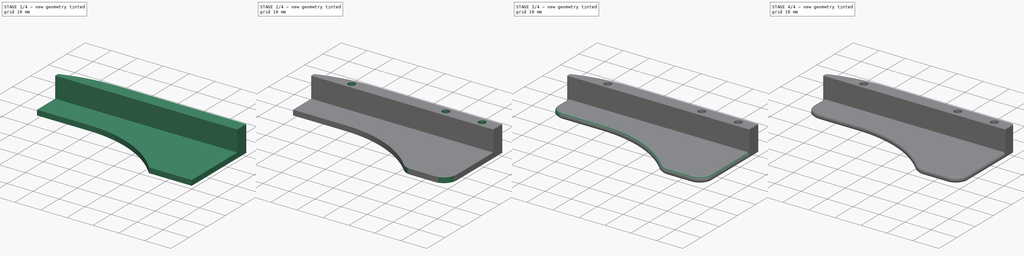
[diagram: build sequence overview — one tinted view per stage of 4, left to right]
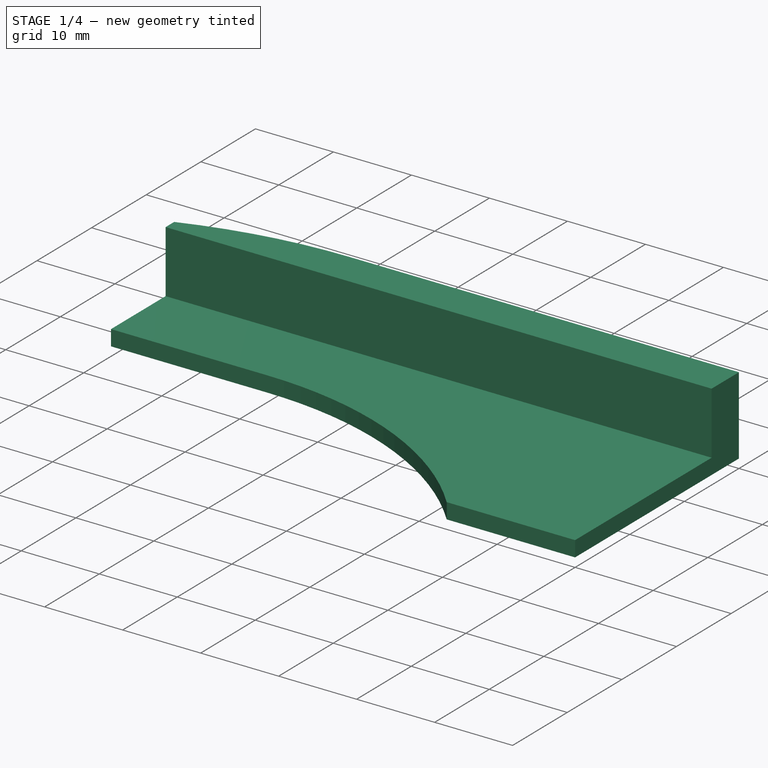
[diagram: stage 1 of 4 — iso view after this stage's code; geometry added in this stage tinted green]
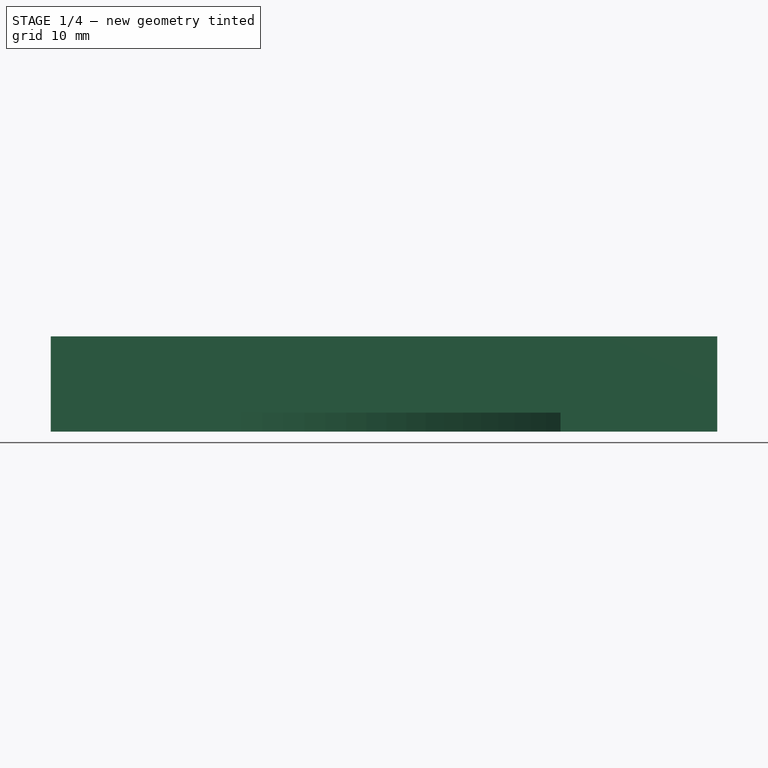
[diagram: stage 1 of 4 — front view after this stage's code; geometry added in this stage tinted green]
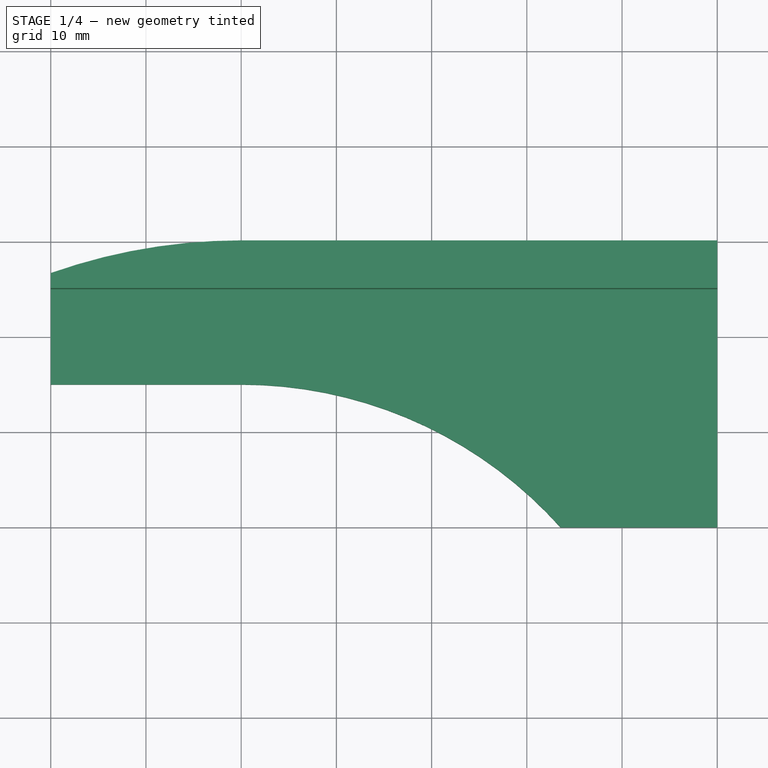
[diagram: stage 1 of 4 — top view after this stage's code; geometry added in this stage tinted green]
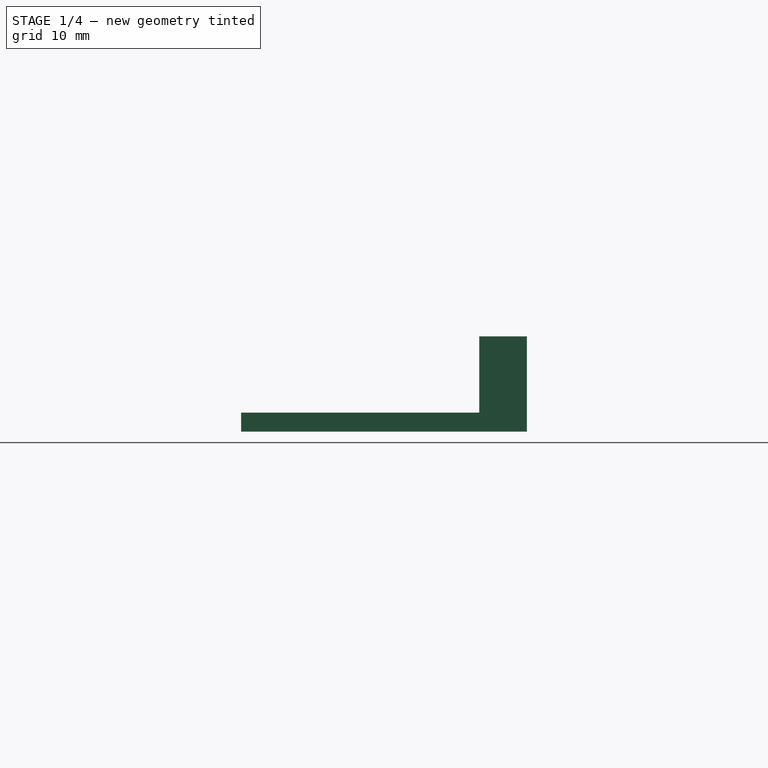
[diagram: stage 1 of 4 — right view after this stage's code; geometry added in this stage tinted green]
FCSTD DOCUMENT  (FreeCAD 0.16R)
Label: out4
License: All rights reserved
LicenseURL: http://en.wikipedia.org/wiki/All_rights_reserved
objects: PartDesign::Fillet×6, Sketcher::SketchObject×3, PartDesign::Pad×2, PartDesign::Pocket×1, PartDesign::Chamfer×1
note: 16 computed .brp shape members not serialized (recipe doc carries the construction recipe); baked Part::Feature solids carry a one-line shape summary decoded from their .brp

FEATURE [Sketcher::SketchObject] Sketch001
  sketch-geometry (11):
    g0: LineSegment [constr] StartX=0 StartY=0 StartZ=0 EndX=43.8558 EndY=143.446 EndZ=0
    g1: Circle [constr] CenterX=0 CenterY=0 CenterZ=0 NormalX=0 NormalY=0 NormalZ=1 Radius=55
    g2: LineSegment [constr] StartX=0 StartY=55 StartZ=0 EndX=150 EndY=55 EndZ=0
    g3: LineSegment StartX=33.541 StartY=30 StartZ=0 EndX=50 EndY=30 EndZ=0
    g4: Circle [constr] CenterX=0 CenterY=0 CenterZ=0 NormalX=0 NormalY=0 NormalZ=1 Radius=35.4
    g5: ArcOfCircle CenterX=0 CenterY=0 CenterZ=0 NormalX=0 NormalY=0 NormalZ=1 Radius=60 StartAngle=1.5708 EndAngle=1.91063
    g6: ArcOfCircle CenterX=0 CenterY=0 CenterZ=0 NormalX=0 NormalY=0 NormalZ=1 Radius=45 StartAngle=0.729728 EndAngle=1.57079
    g7: LineSegment StartX=50 StartY=30 StartZ=0 EndX=50 EndY=60 EndZ=0
    g8: LineSegment StartX=0 StartY=60 StartZ=0 EndX=50 EndY=60 EndZ=0
    g9: LineSegment StartX=-20 StartY=45 StartZ=0 EndX=-20 EndY=56.5685 EndZ=0
    g10: LineSegment StartX=-20 StartY=45 StartZ=0 EndX=8.59442e-05 EndY=45 EndZ=0
  constraints (35):
    c: Coincident(g0,g-1)
    c: Distance(g0) = 150
    c: Angle(g0) = 1.27409
    c: Coincident(g1,g-1)
    c: Radius(g1) = 55
    c: Horizontal(g2)
    c: Horizontal(g3)
    c: Radius(g4) = 35.4
    c: Coincident(g4,g-1)
    c: Coincident(g5,g-1)
    c: Radius(g5) = 60
    c: Coincident(g6,g-1)
    c: Radius(g6) = 45
    c: Vertical(g7)
    c: PointOnObject(g8,g5)
    c: Coincident(g8,g7)
    c: Horizontal(g8)
    c: Coincident(g7,g3)
    c: Coincident(g6,g3)
    c: Coincident(g8,g5)
    c: Coincident(g9,g5)
    c: Vertical(g9)
    c: DistanceX(g5,g-1) = 20
    c: DistanceX(g7) = 50
    c: Distance(g7) = 30
    c: PointOnObject(g5,g-2)
    c: Distance(g2) = 150
    c: PointOnObject(g2,g1)
    c: PointOnObject(g2,g-2)
    c: PointOnObject(g10,g6)
    c: Horizontal(g10)
    c: Tangent(g10,g6)
    c: PointOnObject(g10,g9)
    c: Coincident(g9,g10)
    c: Coincident(g6,g10)
FEATURE [PartDesign::Pad] Pad
  Length = 2
  Length2 = 100
  Sketch = -> Sketch001
  Type = 0
FEATURE [Sketcher::SketchObject] Sketch002
  Placement = pos=(0,0,2) rot=(0,0,1;0rad)
  Support = -> Pad [Face9]
  sketch-geometry (9):
    g0: LineSegment [constr] StartX=0 StartY=0 StartZ=0 EndX=43.8558 EndY=143.446 EndZ=0
    g1: Circle [constr] CenterX=0 CenterY=0 CenterZ=0 NormalX=0 NormalY=0 NormalZ=1 Radius=55
    g2: LineSegment StartX=29.7023 StartY=55 StartZ=0 EndX=50 EndY=55 EndZ=0
    g3: Circle [constr] CenterX=0 CenterY=0 CenterZ=0 NormalX=0 NormalY=0 NormalZ=1 Radius=35.4
    g4: ArcOfCircle CenterX=0 CenterY=0 CenterZ=0 NormalX=0 NormalY=0 NormalZ=1 Radius=60 StartAngle=1.5708 EndAngle=1.91063
    g5: LineSegment StartX=50 StartY=55 StartZ=0 EndX=50 EndY=60 EndZ=0
    g6: LineSegment StartX=-6e-12 StartY=60 StartZ=0 EndX=50 EndY=60 EndZ=0
    g7: LineSegment StartX=-20 StartY=55 StartZ=0 EndX=-20 EndY=56.5685 EndZ=0
    g8: LineSegment StartX=-20 StartY=55 StartZ=0 EndX=50 EndY=55 EndZ=0
  constraints (25):
    c: Coincident(g0,g-1)
    c: Distance(g0) = 150
    c: Angle(g0) = 1.27409
    c: Coincident(g1,g-1)
    c: Radius(g1) = 55
    c: Horizontal(g2)
    c: Radius(g3) = 35.4
    c: Coincident(g3,g-1)
    c: Coincident(g4,g-1)
    c: Radius(g4) = 60
    c: Vertical(g5)
    c: Coincident(g6,g5)
    c: Horizontal(g6)
    c: Coincident(g5,g2)
    c: Coincident(g6,g4)
    c: Coincident(g7,g4)
    c: Vertical(g7)
    c: DistanceX(g4,g-1) = 20
    c: DistanceX(g5) = 50
    c: Distance(g5) = 5
    c: PointOnObject(g4,g-2)
    c: Coincident(g8,g7)
    c: Coincident(g8,g2)
    c: Horizontal(g8)
    c: Distance(g2) = 20.2977
FEATURE [PartDesign::Pad] Pad001
  Length = 8
  Length2 = 100
  Sketch = -> Sketch002
  Type = 0
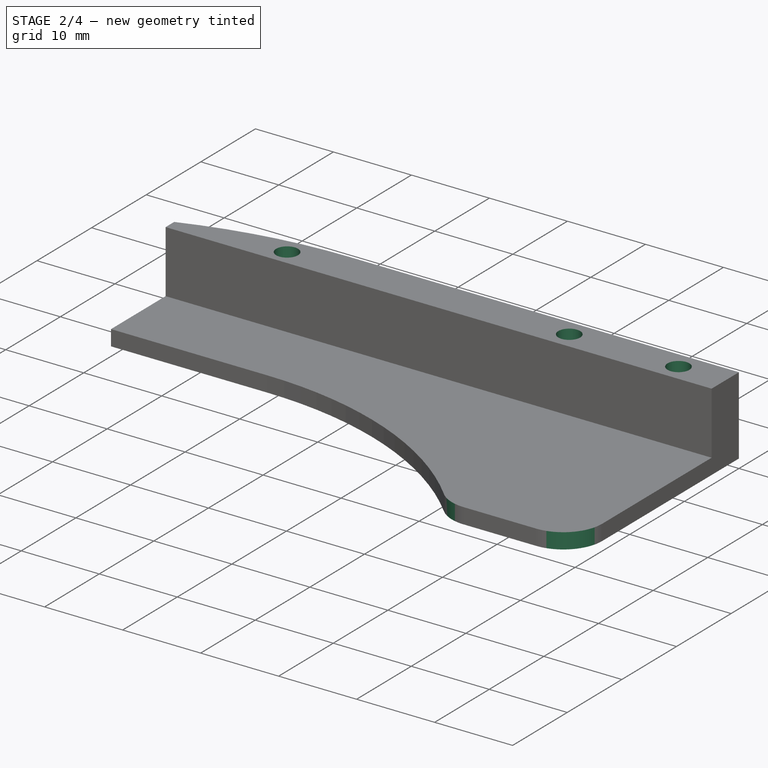
[diagram: stage 2 of 4 — iso view after this stage's code; geometry added in this stage tinted green]
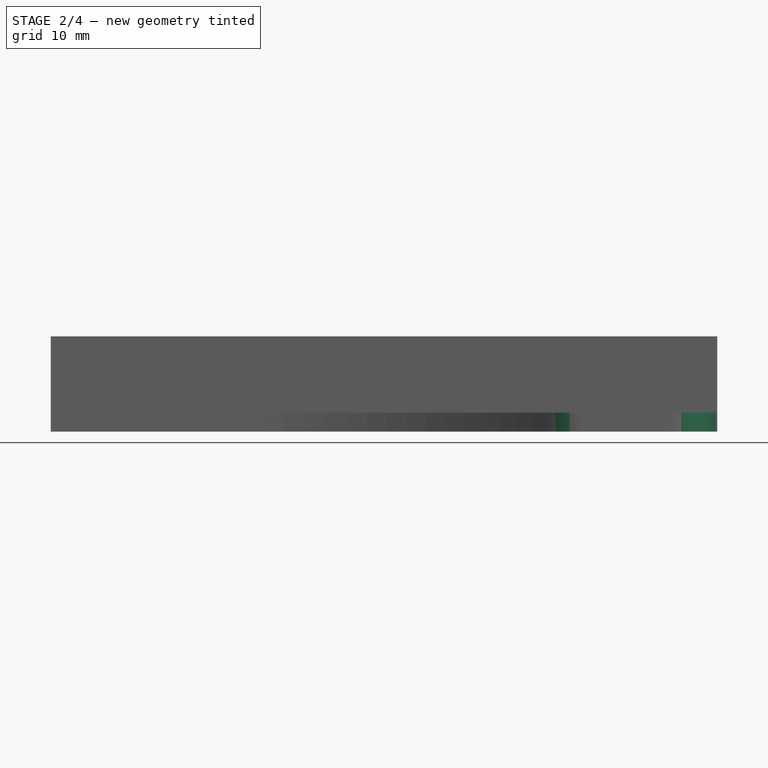
[diagram: stage 2 of 4 — front view after this stage's code; geometry added in this stage tinted green]
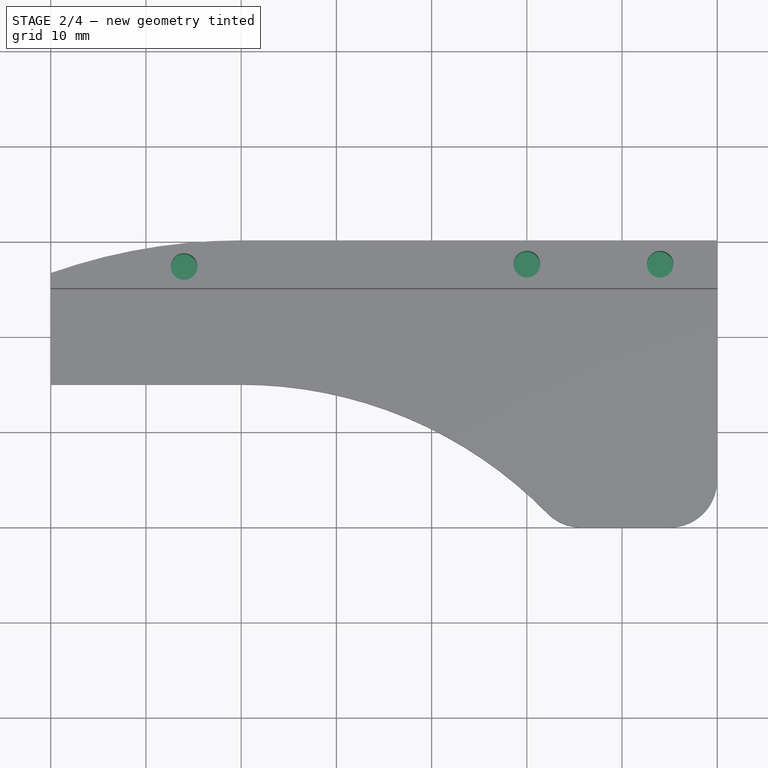
[diagram: stage 2 of 4 — top view after this stage's code; geometry added in this stage tinted green]
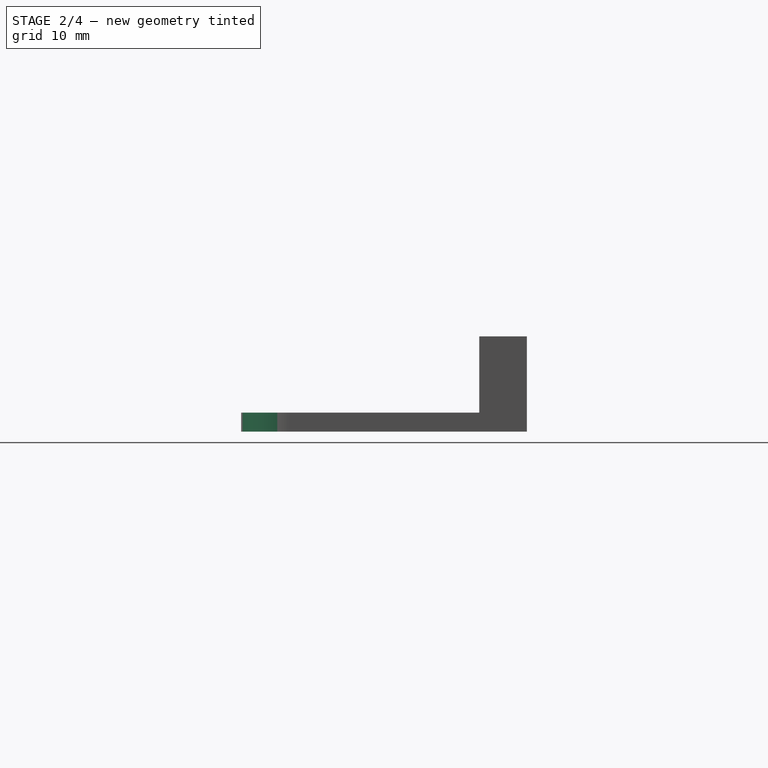
[diagram: stage 2 of 4 — right view after this stage's code; geometry added in this stage tinted green]
FEATURE [Sketcher::SketchObject] Sketch003
  Placement = pos=(0,0,10) rot=(0,0,1;0rad)
  Support = -> Pad001 [Face13]
  sketch-geometry (3):
    g0: Circle CenterX=-6 CenterY=57.25 CenterZ=0 NormalX=0 NormalY=0 NormalZ=1 Radius=1.4
    g1: Circle CenterX=30 CenterY=57.5 CenterZ=0 NormalX=0 NormalY=0 NormalZ=1 Radius=1.4
    g2: Circle CenterX=44 CenterY=57.5 CenterZ=0 NormalX=0 NormalY=0 NormalZ=1 Radius=1.4
  constraints (4):
    c: Radius(g1) = 1.4
    c: Equal(g1,g0)
    c: Equal(g1,g2)
    c: DistanceX(g1) = 30
FEATURE [PartDesign::Pocket] Pocket
  Length = 7
  Sketch = -> Sketch003
  Type = 0
FEATURE [PartDesign::Fillet] Fillet
  Base = -> Pocket [Edge24]
  Radius = 5
FEATURE [PartDesign::Fillet] Fillet001
  Base = -> Fillet [Edge10]
  Radius = 5
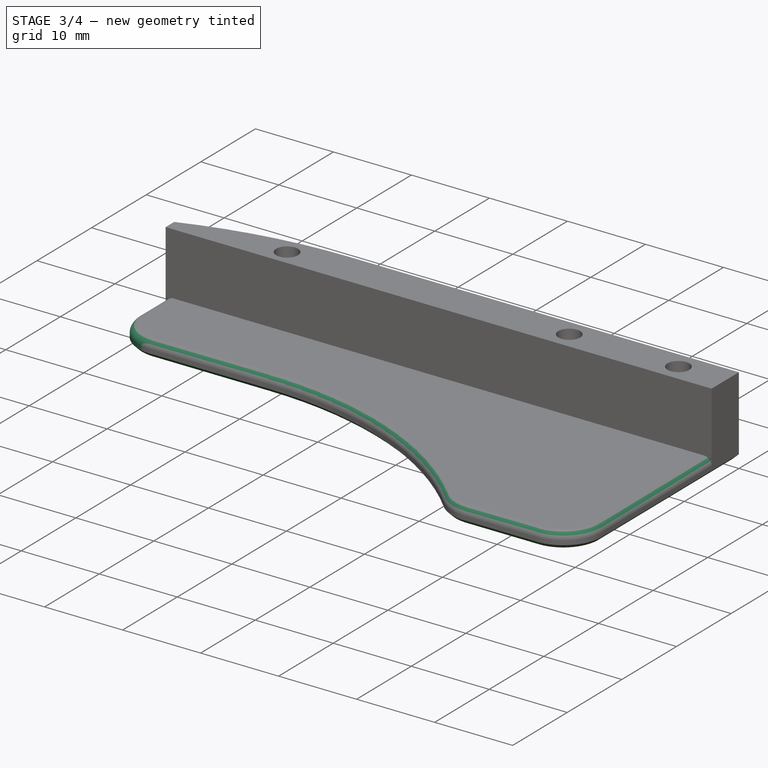
[diagram: stage 3 of 4 — iso view after this stage's code; geometry added in this stage tinted green]
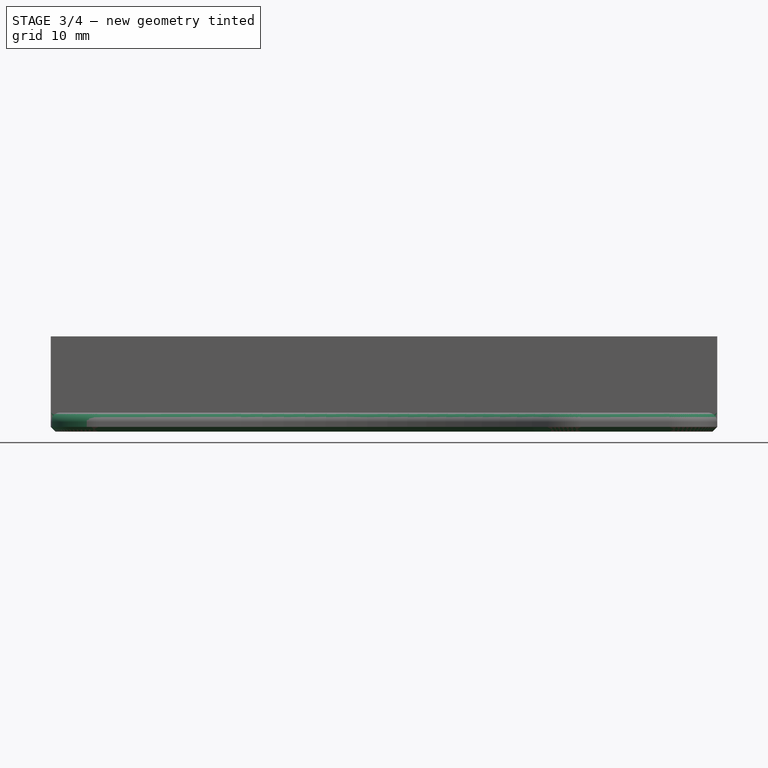
[diagram: stage 3 of 4 — front view after this stage's code; geometry added in this stage tinted green]
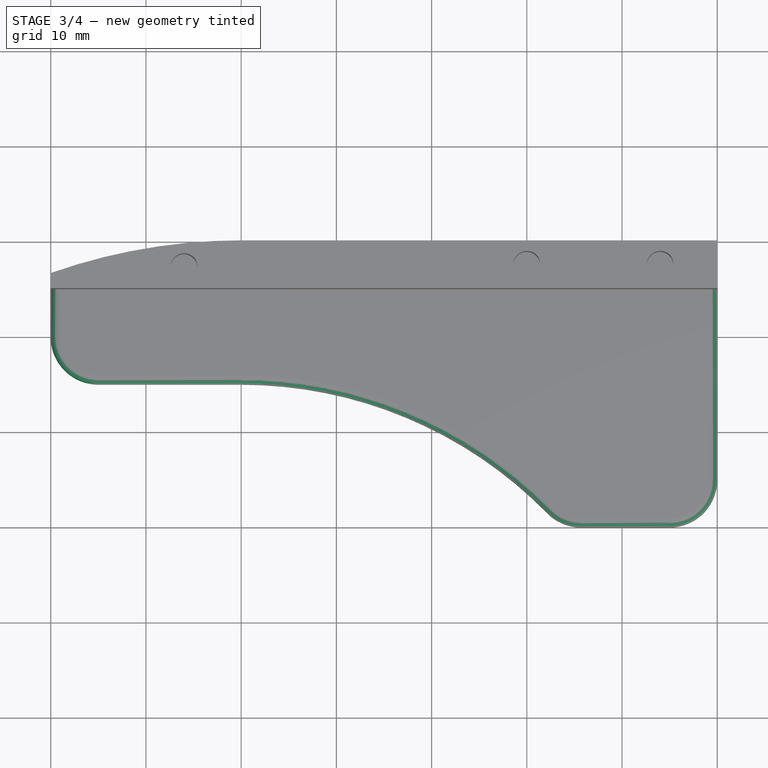
[diagram: stage 3 of 4 — top view after this stage's code; geometry added in this stage tinted green]
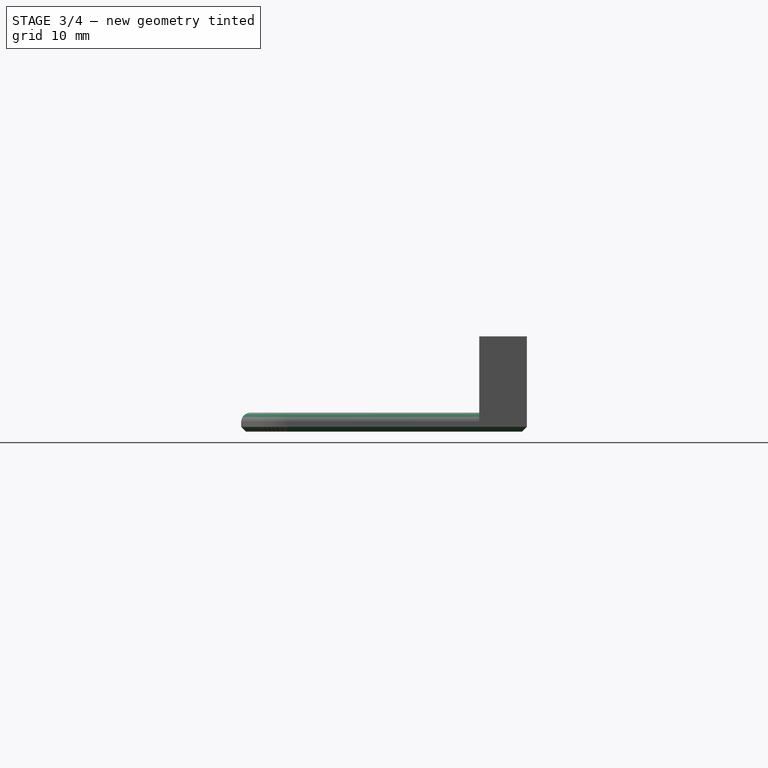
[diagram: stage 3 of 4 — right view after this stage's code; geometry added in this stage tinted green]
FEATURE [PartDesign::Fillet] Fillet002
  Base = -> Fillet001 [Edge22]
  Radius = 5
FEATURE [PartDesign::Fillet] Fillet003
  Base = -> Fillet002 [Edge31]
  Radius = 1
FEATURE [PartDesign::Chamfer] Chamfer
  Base = -> Fillet003 [Edge3,Edge6,Edge11,Edge12,Edge13,Edge14,Edge15,Edge16,Edge17,Edge18]
  Size = 0.5
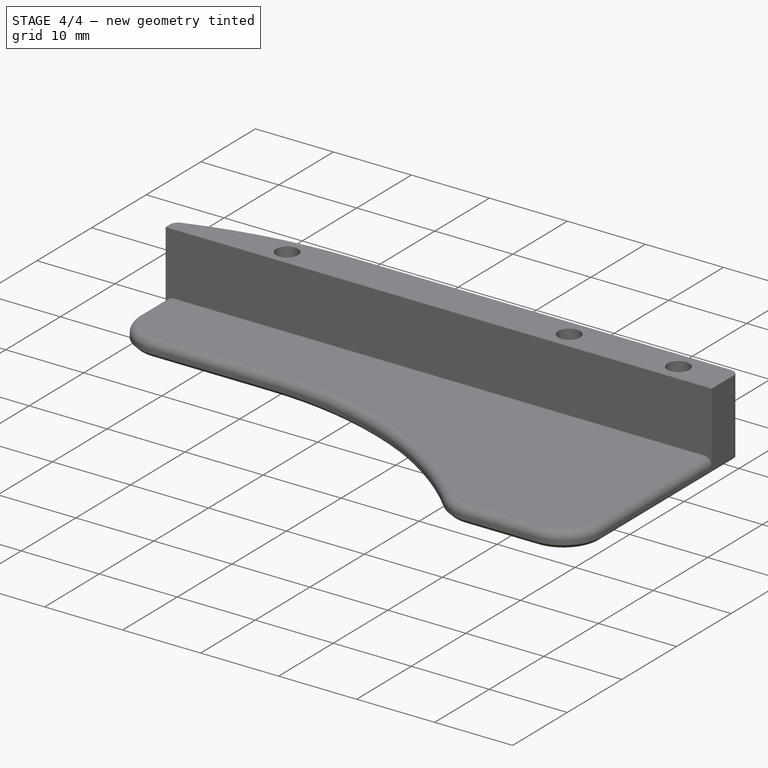
[diagram: stage 4 of 4 — iso view after this stage's code; geometry added in this stage tinted green]
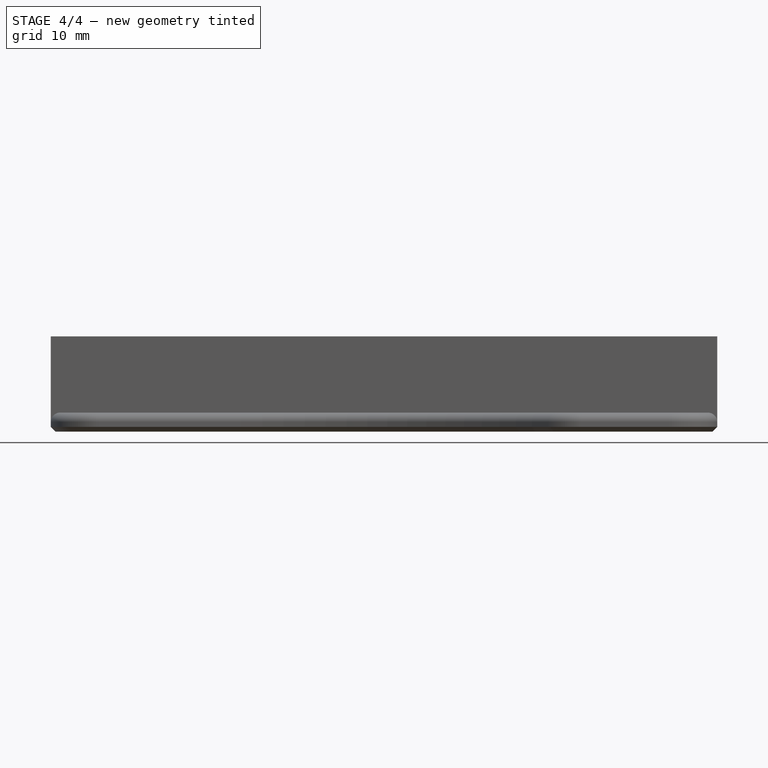
[diagram: stage 4 of 4 — front view after this stage's code; geometry added in this stage tinted green]
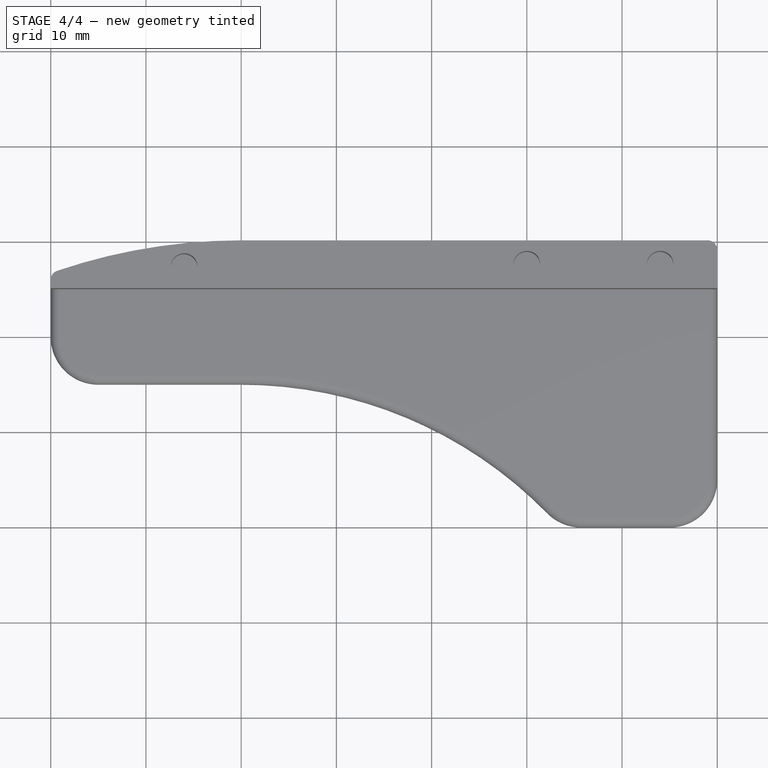
[diagram: stage 4 of 4 — top view after this stage's code; geometry added in this stage tinted green]
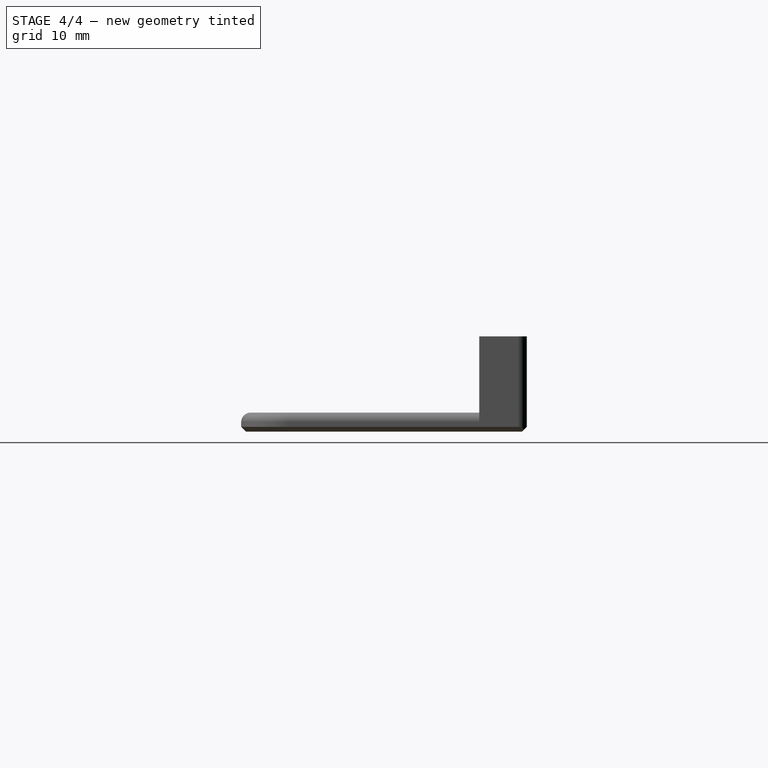
[diagram: stage 4 of 4 — right view after this stage's code; geometry added in this stage tinted green]
FEATURE [PartDesign::Fillet] Fillet004
  Base = -> Chamfer [Edge81]
  Radius = 1
FEATURE [PartDesign::Fillet] Fillet005
  Base = -> Fillet004 [Edge78]
  Radius = 1
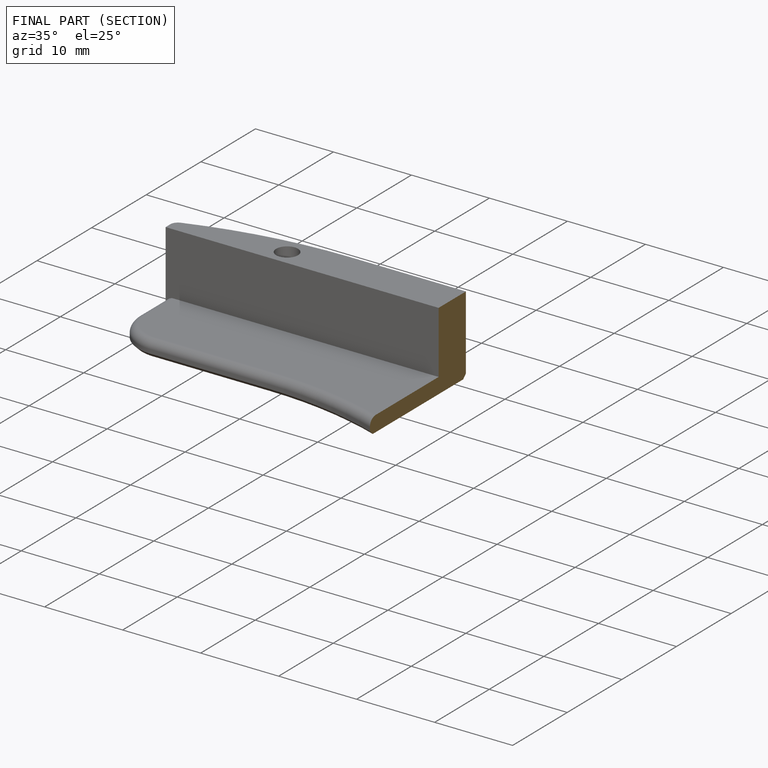
[diagram: finished part — half-section view (interior)]
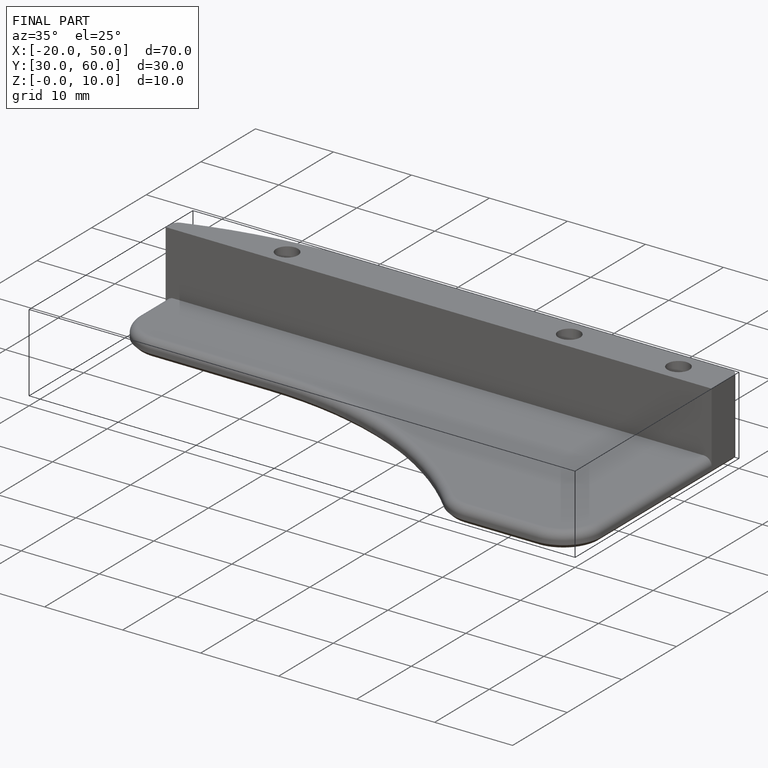
[diagram: finished part — iso view with bounding-box wireframe]
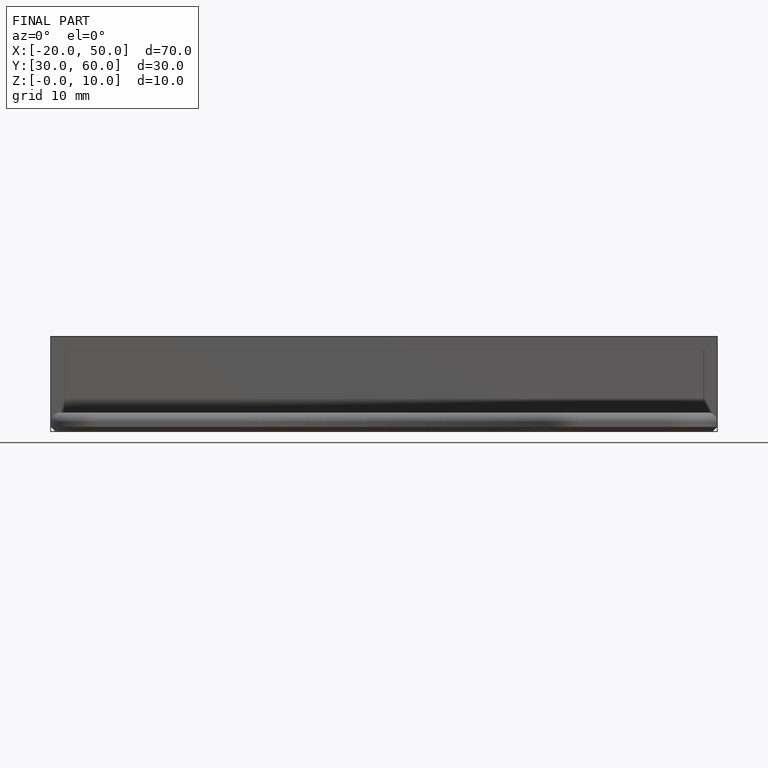
[diagram: finished part — front view with bounding-box wireframe]
